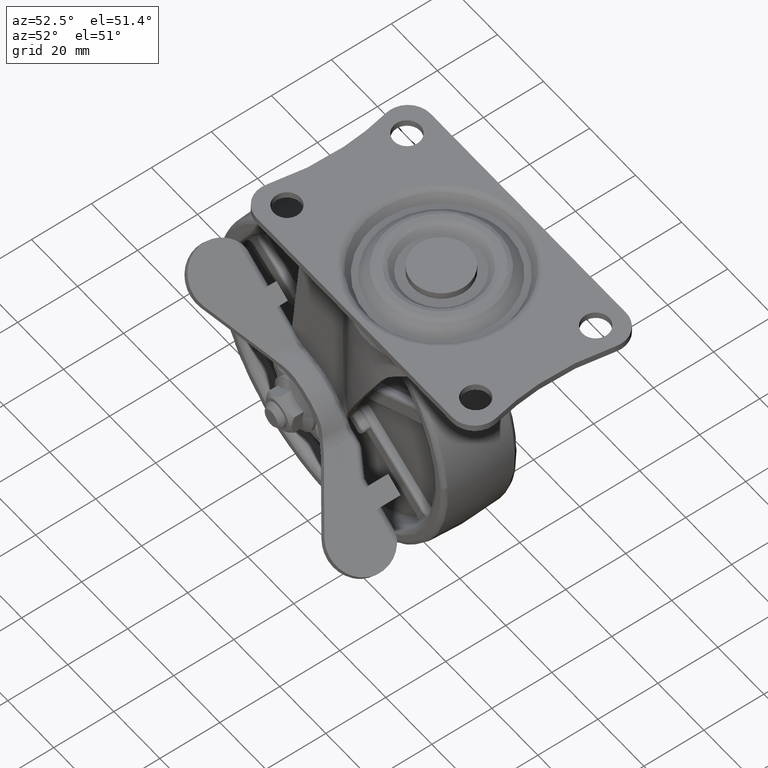
[diagram: clean part render]
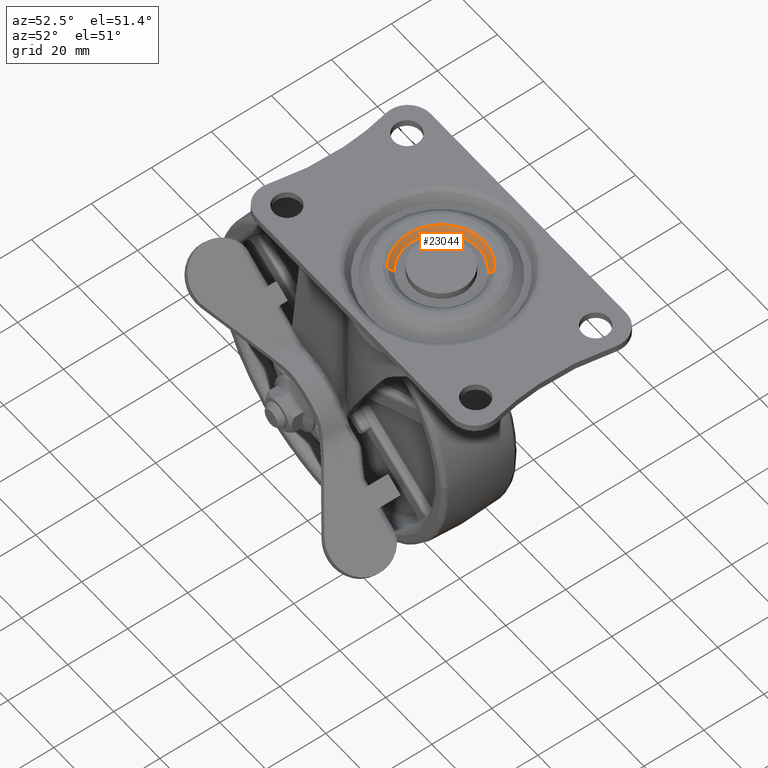
[diagram: same view with one face highlighted and labeled with its STEP entity id]
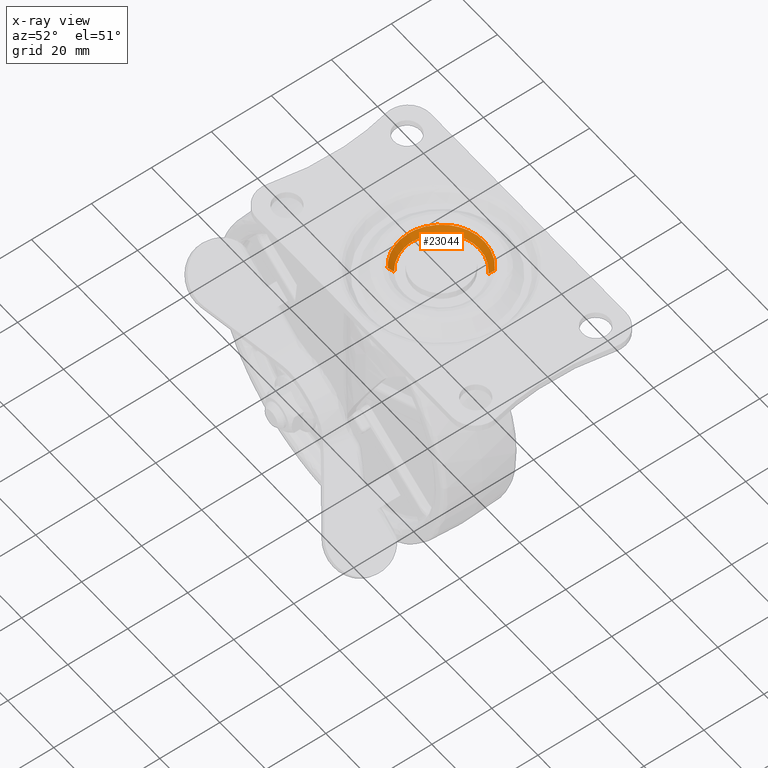
[diagram: x-ray of the same camera — body ghosted, the highlighted face saturated]
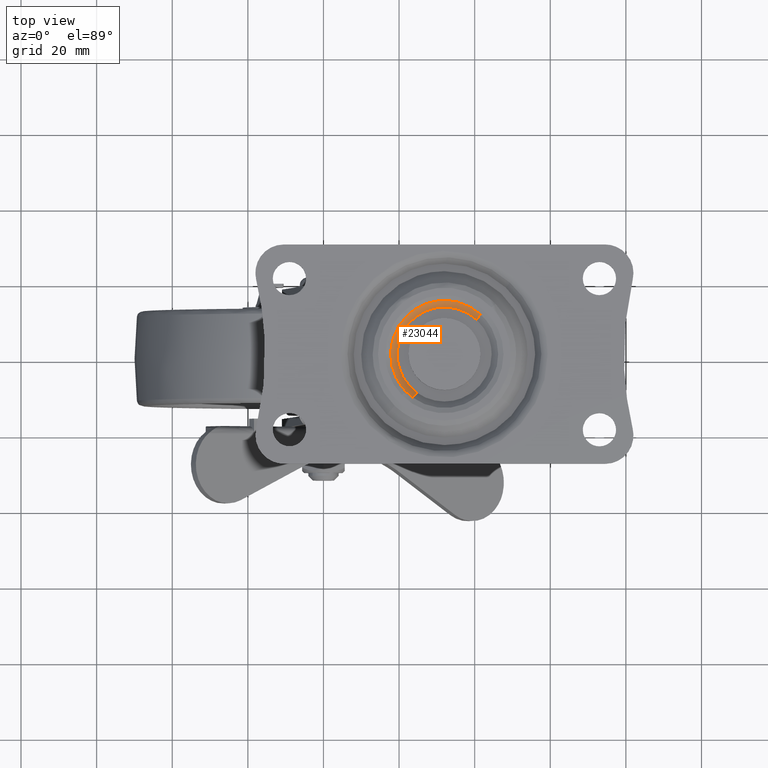
[diagram: same view with one face highlighted and labeled with its STEP entity id]
A machine part, auxiliary view. The second image highlights one B-rep face of the part: STEP entity #23044.
The next image is the same camera in x-ray: the body ghosted, the highlighted face saturated — about 0% of this face is hidden behind the body in this view.
A second angle (top view) of the same face is appended — the face is thin or edge-on in the first view.
In plain terms, the highlighted face is a freeform B-spline surface patch.
Its self-contained STEP definition (entity closure, byte-faithful):
#22852=CARTESIAN_POINT('',(24.675718690741270,-10.129409108249961,69.699997341059287));
#22853=VERTEX_POINT('',#22852);
#22862=CARTESIAN_POINT('',(23.671287024781119,-11.518528236286031,71.414213564893601));
#22863=VERTEX_POINT('',#22862);
#22864=CARTESIAN_POINT('',(24.675718690741270,-10.129409108249961,69.699997341059287));
#22865=CARTESIAN_POINT('',(23.671287024781119,-11.518528236286031,71.414213564893601));
#22866=QUASI_UNIFORM_CURVE('',1,(#22864,#22865),.UNSPECIFIED.,.F.,.U.);
#22867=EDGE_CURVE('',#22853,#22863,#22866,.T.);
#22887=CARTESIAN_POINT('',(41.602985517945442,10.479819731379470,71.414213561600462));
#22888=VERTEX_POINT('',#22887);
#22899=CARTESIAN_POINT('',(40.444878320332982,9.215967501473745,69.699997357779210));
#22900=VERTEX_POINT('',#22899);
#22901=CARTESIAN_POINT('',(40.444878320332982,9.215967501473745,69.699997357779210));
#22902=CARTESIAN_POINT('',(41.602985517945442,10.479819731379470,71.414213561600462));
#22903=QUASI_UNIFORM_CURVE('',1,(#22901,#22902),.UNSPECIFIED.,.F.,.U.);
#22904=EDGE_CURVE('',#22900,#22888,#22903,.T.);
#22934=CARTESIAN_POINT('',(40.415924897020723,9.184370384479260,69.657141585802577));
#22935=CARTESIAN_POINT('',(31.231554512541450,17.600295281499978,69.657141585802592));
#22936=CARTESIAN_POINT('',(22.815629615520741,8.415924897020718,69.657141585802577));
#22937=CARTESIAN_POINT('',(14.399704718500018,-0.768445487458543,69.657141585802592));
#22938=CARTESIAN_POINT('',(23.584075102979281,-9.184370384479260,69.657141585802577));
#22939=CARTESIAN_POINT('',(24.116087372242227,-9.671869811764649,69.657141585802577));
#22940=CARTESIAN_POINT('',(24.700830096946483,-10.094680280125296,69.657141585802577));
#22941=CARTESIAN_POINT('',(41.632662037826222,10.512205969807029,71.458140367445196));
#22942=CARTESIAN_POINT('',(31.120456068019184,20.144868007633239,71.458140367445210));
#22943=CARTESIAN_POINT('',(21.487794030192969,9.632662037826217,71.458140367445196));
#22944=CARTESIAN_POINT('',(11.855131992366760,-0.879543931980809,71.458140367445210));
#22945=CARTESIAN_POINT('',(22.367337962173789,-10.512205969807029,71.458140367445196));
#22946=CARTESIAN_POINT('',(22.976266208622512,-11.070185904767758,71.458140367445196));
#22947=CARTESIAN_POINT('',(23.645548446175226,-11.554124437681102,71.458140367445196));
#22955=(BOUNDED_SURFACE()B_SPLINE_SURFACE(2,1,((#22934,#22941),(#22935,#22942),(#22936,#22943),(#22937,#22944),(#22938,#22945),(#22939,#22946),(#22940,#22947)),.UNSPECIFIED.,.F.,.F.,.U.)B_SPLINE_SURFACE_WITH_KNOTS((3,2,2,3),(2,2),(0.0,23.623665428223369,47.247330856446737,49.137224090704613),(0.0,2.546996902816428),.UNSPECIFIED.)GEOMETRIC_REPRESENTATION_ITEM()RATIONAL_B_SPLINE_SURFACE(((1.0,1.0),(0.707106781186548,0.707106781186548),(1.0,1.0),(0.707106781186548,0.707106781186548),(1.0,1.0),(0.976568542494924,0.976568542494924),(0.956886118190660,0.956886118190660)))REPRESENTATION_ITEM('')SURFACE());
#22956=CARTESIAN_POINT('',(19.500000000000000,0.0,69.699996999999897));
#22957=VERTEX_POINT('',#22956);
#22958=CARTESIAN_POINT('',(24.675718690741270,-10.129409108249961,69.699997341059287));
#22959=CARTESIAN_POINT('',(23.927981004253819,-9.588928365699001,69.699997322861236));
#22960=CARTESIAN_POINT('',(22.736497643231370,-8.507640556038099,69.699997286453794));
#22961=CARTESIAN_POINT('',(21.072944558641169,-6.283983394523714,69.699997211583153));
#22962=CARTESIAN_POINT('',(19.830087830172161,-3.505776574546630,69.699997118039875));
#22963=CARTESIAN_POINT('',(19.499605142835069,-1.168678776472406,69.699997039349782));
#22964=CARTESIAN_POINT('',(19.500000000000000,0.0,69.699996999999897));
#22965=B_SPLINE_CURVE_WITH_KNOTS('',3,(#22958,#22959,#22960,#22961,#22962,#22963,#22964),.UNSPECIFIED.,.F.,.U.,(4,1,1,1,4),(0.000000090410639,2.767858341188290,4.797631351988959,8.303563843925971,11.809529409844540),.UNSPECIFIED.);
#22966=EDGE_CURVE('',#22853,#22957,#22965,.T.);
#22967=ORIENTED_EDGE('',*,*,#22966,.T.);
#22968=CARTESIAN_POINT('',(32.000002873168057,12.499999999999670,69.699996999999911));
#22969=VERTEX_POINT('',#22968);
#22970=CARTESIAN_POINT('',(19.500000000000000,0.0,69.699996999999897));
#22971=CARTESIAN_POINT('',(19.499920409516779,0.766992084622892,69.699996999999854));
#22972=CARTESIAN_POINT('',(19.636937167215621,2.249796210336129,69.699996999999911));
#22973=CARTESIAN_POINT('',(20.293759668248729,4.624093917160592,69.699997000000039));
#22974=CARTESIAN_POINT('',(21.465163489231681,6.916112879931303,69.699996999999300));
#22975=CARTESIAN_POINT('',(23.173850609196300,8.972215790675243,69.699997000000764));
#22976=CARTESIAN_POINT('',(25.179562861931480,10.577444987325730,69.699996999999087));
#22977=CARTESIAN_POINT('',(27.422774890518721,11.723973941745649,69.699997000000323));
#22978=CARTESIAN_POINT('',(29.750189347988631,12.367907989212400,69.699996999999357));
#22979=CARTESIAN_POINT('',(31.284165476243270,12.500051167006390,69.699997000001019));
#22980=CARTESIAN_POINT('',(32.000002873168057,12.499999999999670,69.699996999999911));
#22981=B_SPLINE_CURVE_WITH_KNOTS('',3,(#22970,#22971,#22972,#22973,#22974,#22975,#22976,#22977,#22978,#22979,#22980),.UNSPECIFIED.,.F.,.U.,(4,1,1,1,1,1,1,1,4),(0.000000274323881,2.300971341248335,4.448570316862972,7.363159555665588,9.970855970914103,12.425274351727079,15.033110631209160,17.487550758309951,19.635078905329831),.UNSPECIFIED.);
#22982=EDGE_CURVE('',#22957,#22969,#22981,.T.);
#22983=ORIENTED_EDGE('',*,*,#22982,.T.);
#22984=CARTESIAN_POINT('',(32.000002873168057,12.499999999999670,69.699996999999911));
#22985=CARTESIAN_POINT('',(32.724382419415420,12.500053727151570,69.699997030689374));
#22986=CARTESIAN_POINT('',(34.221442996517787,12.369542061946840,69.699997094114465));
#22987=CARTESIAN_POINT('',(36.186471422074263,11.832945864999690,69.699997177365645));
#22988=CARTESIAN_POINT('',(38.348585944450683,10.859500461182890,69.699997268966783));
#22989=CARTESIAN_POINT('',(39.661775066371398,9.934016584975923,69.699997324601981));
#22990=CARTESIAN_POINT('',(40.444878320332982,9.215967501473745,69.699997357779210));
#22991=B_SPLINE_CURVE_WITH_KNOTS('',3,(#22984,#22985,#22986,#22987,#22988,#22989,#22990),.UNSPECIFIED.,.F.,.U.,(4,1,1,1,4),(0.000000066061572,2.173148517110613,4.491222579940708,6.084809064251419,9.272111069912871),.UNSPECIFIED.);
#22992=EDGE_CURVE('',#22969,#22900,#22991,.T.);
#22993=ORIENTED_EDGE('',*,*,#22992,.T.);
#22994=ORIENTED_EDGE('',*,*,#22904,.T.);
#22995=CARTESIAN_POINT('',(22.140261688119679,10.238628475543180,71.414213567892944));
#22996=VERTEX_POINT('',#22995);
#22997=CARTESIAN_POINT('',(41.602985517945442,10.479819731379470,71.414213561600462));
#22998=CARTESIAN_POINT('',(40.779893006216213,11.234444666880540,71.414213561702454));
#22999=CARTESIAN_POINT('',(39.456442794171437,12.186536770813969,71.414213561922011));
#23000=CARTESIAN_POINT('',(37.194290382634648,13.287896253578650,71.414213562411121));
#23001=CARTESIAN_POINT('',(35.001649850655447,13.980081627685941,71.414213562964946));
#23002=CARTESIAN_POINT('',(32.049743888754747,14.327902681917120,71.414213563837450));
#23003=CARTESIAN_POINT('',(29.027137213168370,14.022303527315909,71.414213564871801));
#23004=CARTESIAN_POINT('',(26.261729034634659,13.091329219539290,71.414213565958647));
#23005=CARTESIAN_POINT('',(24.009301577415268,11.839253147035180,71.414213566949783));
#23006=CARTESIAN_POINT('',(22.743441932443861,10.819598797016731,71.414213567574819));
#23007=CARTESIAN_POINT('',(22.140261688119679,10.238628475543180,71.414213567892944));
#23008=B_SPLINE_CURVE_WITH_KNOTS('',3,(#22997,#22998,#22999,#23000,#23001,#23002,#23003,#23004,#23005,#23006,#23007),.UNSPECIFIED.,.F.,.U.,(4,1,1,1,1,1,1,1,4),(0.000000238399494,3.349902999102326,4.857407084815840,7.537404587286357,10.217359498851341,13.734712396140010,16.582207403612191,18.927215367975801,21.439619333284892),.UNSPECIFIED.);
#23009=EDGE_CURVE('',#22888,#22996,#23008,.T.);
#23010=ORIENTED_EDGE('',*,*,#23009,.T.);
#23011=CARTESIAN_POINT('',(17.785783437626900,0.0,71.414213562372993));
#23012=VERTEX_POINT('',#23011);
#23013=CARTESIAN_POINT('',(22.140261688119679,10.238628475543180,71.414213567892944));
#23014=CARTESIAN_POINT('',(21.539783449908182,9.660473084148086,71.414213567131867));
#23015=CARTESIAN_POINT('',(20.401761150680709,8.353007276230356,71.414213565688939));
#23016=CARTESIAN_POINT('',(19.031675788241699,6.036631255766394,71.414213563952458));
#23017=CARTESIAN_POINT('',(18.035928672071879,3.215055996590531,71.414213562690350));
#23018=CARTESIAN_POINT('',(17.785509529025742,1.131298080141429,71.414213562372552));
#23019=CARTESIAN_POINT('',(17.785783437626900,0.0,71.414213562372993));
#23020=B_SPLINE_CURVE_WITH_KNOTS('',3,(#23013,#23014,#23015,#23016,#23017,#23018,#23019),.UNSPECIFIED.,.F.,.U.,(4,1,1,1,4),(0.000000075212036,2.500710691261913,5.180070470362425,8.037994013925145,11.431826467032710),.UNSPECIFIED.);
#23021=EDGE_CURVE('',#22996,#23012,#23020,.T.);
#23022=ORIENTED_EDGE('',*,*,#23021,.T.);
#23023=CARTESIAN_POINT('',(21.761371526241120,-9.859738310146131,71.414213565404779));
#23024=VERTEX_POINT('',#23023);
#23025=CARTESIAN_POINT('',(17.785783437626900,0.0,71.414213562372993));
#23026=CARTESIAN_POINT('',(17.785447333054499,-1.191767095511947,71.414213562372623));
#23027=CARTESIAN_POINT('',(18.058658955969712,-3.348077341460042,71.414213562581196));
#23028=CARTESIAN_POINT('',(19.321760676916131,-6.773473985801958,71.414213563544308));
#23029=CARTESIAN_POINT('',(20.737276071624951,-8.797390517394936,71.414213564623779));
#23030=CARTESIAN_POINT('',(21.761371526241120,-9.859738310146131,71.414213565404779));
#23031=B_SPLINE_CURVE_WITH_KNOTS('',3,(#23025,#23026,#23027,#23028,#23029,#23030),.UNSPECIFIED.,.F.,.U.,(4,1,1,4),(0.000000068128596,3.575250803648184,6.469457247871097,10.895953037962510),.UNSPECIFIED.);
#23032=EDGE_CURVE('',#23012,#23024,#23031,.T.);
#23033=ORIENTED_EDGE('',*,*,#23032,.T.);
#23034=CARTESIAN_POINT('',(21.761371526241120,-9.859738310146131,71.414213565404779));
#23035=CARTESIAN_POINT('',(22.347029686522198,-10.467960339652070,71.414213565236778));
#23036=CARTESIAN_POINT('',(22.987028929817029,-11.023832961087979,71.414213565065467));
#23037=CARTESIAN_POINT('',(23.671287024781119,-11.518528236286031,71.414213564893601));
#23038=B_SPLINE_CURVE_WITH_KNOTS('',3,(#23034,#23035,#23036,#23037),.UNSPECIFIED.,.F.,.U.,(4,4),(2.453903E-009,2.533059394099910),.UNSPECIFIED.);
#23039=EDGE_CURVE('',#23024,#22863,#23038,.T.);
#23040=ORIENTED_EDGE('',*,*,#23039,.T.);
#23041=ORIENTED_EDGE('',*,*,#22867,.F.);
#23042=EDGE_LOOP('',(#22967,#22983,#22993,#22994,#23010,#23022,#23033,#23040,#23041));
#23043=FACE_OUTER_BOUND('',#23042,.T.);
#23044=ADVANCED_FACE('',(#23043),#22955,.F.);